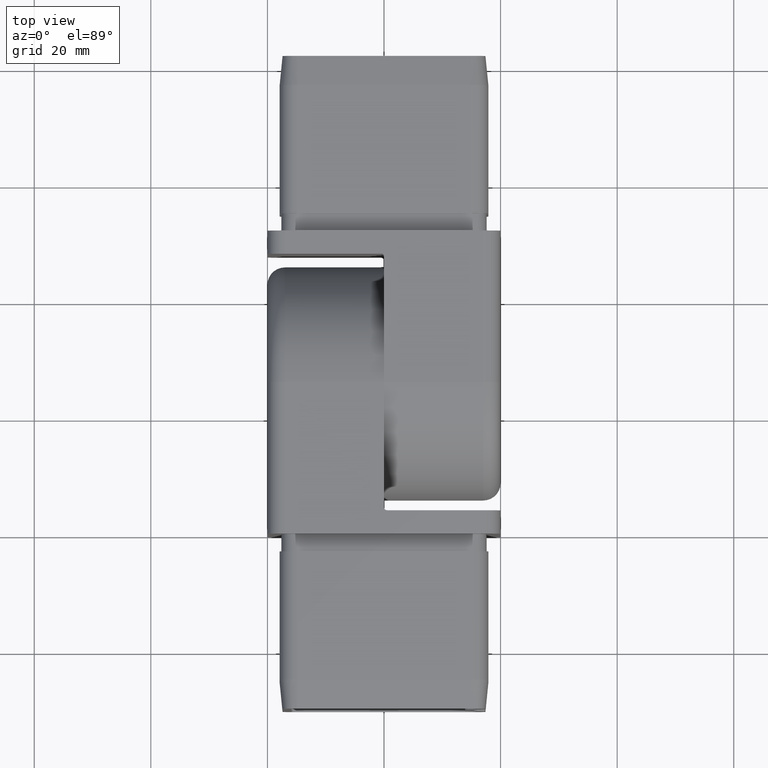
[diagram: clean part render]
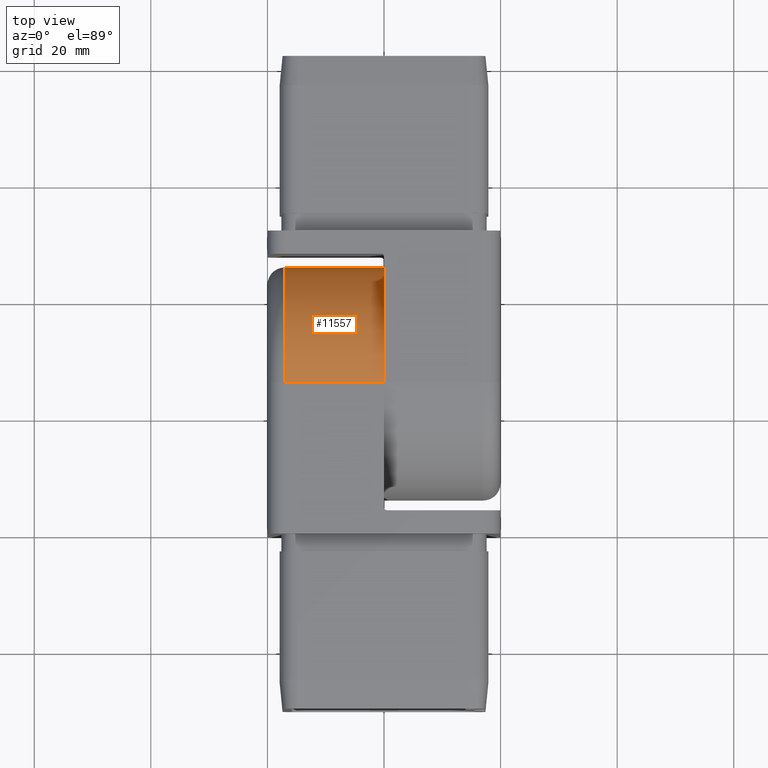
[diagram: same view with one face highlighted and labeled with its STEP entity id]
A machine part, top view. The second image highlights one B-rep face of the part: STEP entity #11557.
In plain terms, the highlighted cylindrical surface (partial cylindrical patch) has radius 20 mm, axis along (-1, 0, 0).
Its self-contained STEP definition (entity closure, byte-faithful):
#914 = DIRECTION ( 'NONE',  ( 1.000000000000000000, 0.0000000000000000000, -8.673617379884035500E-017 ) ) ;
#1323 = CARTESIAN_POINT ( 'NONE',  ( 1.453834222653110600E-015, 26.00000000000000000, 0.0000000000000000000 ) ) ;
#1453 = VECTOR ( 'NONE', #10835, 1000.000000000000000 ) ;
#2334 = AXIS2_PLACEMENT_3D ( 'NONE', #14893, #914, #11970 ) ;
#2822 = ORIENTED_EDGE ( 'NONE', *, *, #3984, .T. ) ;
#3196 = CIRCLE ( 'NONE', #2334, 20.00000000000000000 ) ;
#3305 = DIRECTION ( 'NONE',  ( -1.000000000000000000, 0.0000000000000000000, 0.0000000000000000000 ) ) ;
#3324 = VERTEX_POINT ( 'NONE', #8383 ) ;
#3861 = CARTESIAN_POINT ( 'NONE',  ( -16.99999999999999300, 46.00000000000000000, 0.0000000000000000000 ) ) ;
#3984 = EDGE_CURVE ( 'NONE', #5501, #4648, #3196, .T. ) ;
#4243 = VERTEX_POINT ( 'NONE', #15257 ) ;
#4287 = DIRECTION ( 'NONE',  ( 1.000000000000000000, -0.0000000000000000000, -9.314105568150003300E-017 ) ) ;
#4299 = EDGE_LOOP ( 'NONE', ( #6626, #2822, #5785, #8754 ) ) ;
#4648 = VERTEX_POINT ( 'NONE', #10888 ) ;
#5444 = EDGE_CURVE ( 'NONE', #5501, #4243, #9959, .T. ) ;
#5501 = VERTEX_POINT ( 'NONE', #3861 ) ;
#5785 = ORIENTED_EDGE ( 'NONE', *, *, #12433, .F. ) ;
#6423 = EDGE_CURVE ( 'NONE', #4243, #3324, #9277, .T. ) ;
#6496 = AXIS2_PLACEMENT_3D ( 'NONE', #13185, #3305, #11709 ) ;
#6626 = ORIENTED_EDGE ( 'NONE', *, *, #5444, .F. ) ;
#7327 = LINE ( 'NONE', #8220, #1453 ) ;
#8220 = CARTESIAN_POINT ( 'NONE',  ( -19.99999999999999300, 26.00000000000000000, 20.00000000000000000 ) ) ;
#8265 = DIRECTION ( 'NONE',  ( 9.314105568150004500E-017, -1.734723475976807100E-015, 1.000000000000000000 ) ) ;
#8383 = CARTESIAN_POINT ( 'NONE',  ( 3.316655336283110800E-015, 26.00000000000000700, 20.00000000000000000 ) ) ;
#8754 = ORIENTED_EDGE ( 'NONE', *, *, #6423, .F. ) ;
#9277 = CIRCLE ( 'NONE', #10253, 20.00000000000000000 ) ;
#9959 = LINE ( 'NONE', #11799, #11711 ) ;
#10253 = AXIS2_PLACEMENT_3D ( 'NONE', #1323, #4287, #8265 ) ;
#10835 = DIRECTION ( 'NONE',  ( -1.000000000000000000, -0.0000000000000000000, -0.0000000000000000000 ) ) ;
#10888 = CARTESIAN_POINT ( 'NONE',  ( -16.99999999999999300, 26.00000000000000000, 20.00000000000000000 ) ) ;
#11557 = ADVANCED_FACE ( 'NONE', ( #14881 ), #13543, .T. ) ;
#11709 = DIRECTION ( 'NONE',  ( 0.0000000000000000000, 0.0000000000000000000, 1.000000000000000000 ) ) ;
#11711 = VECTOR ( 'NONE', #13225, 1000.000000000000000 ) ;
#11799 = CARTESIAN_POINT ( 'NONE',  ( 3.316655336283110800E-015, 46.00000000000000000, 0.0000000000000000000 ) ) ;
#11970 = DIRECTION ( 'NONE',  ( 0.0000000000000000000, 0.0000000000000000000, -1.000000000000000000 ) ) ;
#12433 = EDGE_CURVE ( 'NONE', #3324, #4648, #7327, .T. ) ;
#13185 = CARTESIAN_POINT ( 'NONE',  ( 0.0000000000000000000, 26.00000000000000000, 0.0000000000000000000 ) ) ;
#13225 = DIRECTION ( 'NONE',  ( 1.000000000000000000, -0.0000000000000000000, 0.0000000000000000000 ) ) ;
#13543 = CYLINDRICAL_SURFACE ( 'NONE', #6496, 20.00000000000000000 ) ;
#14881 = FACE_OUTER_BOUND ( 'NONE', #4299, .T. ) ;
#14893 = CARTESIAN_POINT ( 'NONE',  ( -16.99999999999999300, 26.00000000000000000, 0.0000000000000000000 ) ) ;
#15257 = CARTESIAN_POINT ( 'NONE',  ( 1.453834222653110400E-015, 46.00000000000000000, 0.0000000000000000000 ) ) ;